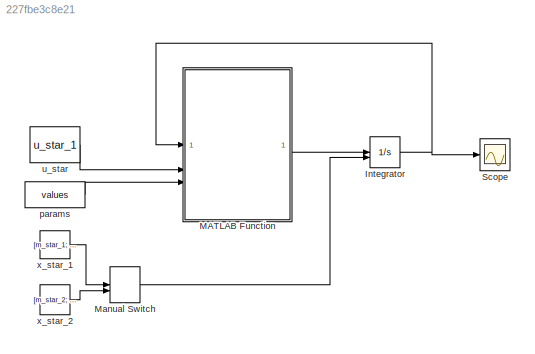
MODEL slx_227fbe3c8e21
KIND model
CONFIG AbsTol = auto
CONFIG EnableMultiTasking = off
CONFIG FixedStep = 0.001
CONFIG MaxStep = auto
CONFIG MinStep = auto
CONFIG RelTol = 1e-3
CONFIG SampleTimeConstraint = Unconstrained
CONFIG SolverName = FixedStepAuto
CONFIG StartTime = 0.0
CONFIG StopTime = 15
BLOCK [Integrator] Integrator
  InitialConditionSource = external
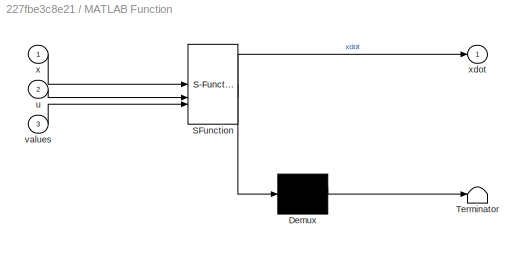
BLOCK [SubSystem] MATLAB Function
  ErrorFcn = Stateflow.Translate.translate
  PermitHierarchicalResolution = ExplicitOnly
  SFBlockType = MATLAB Function
  TreatAsAtomicUnit = on
BLOCK [Demux] MATLAB Function/ Demux 
  Outputs = 1
BLOCK [S-Function] MATLAB Function/ SFunction 
  EnableBusSupport = on
  FunctionName = sf_sfun
  PortCounts = [3 2]
  SFcnIsStateOwnerBlock = off
  SFunctionDeploymentMode = off
  Tag = Stateflow S-Function 2
BLOCK [Terminator] MATLAB Function/ Terminator 
BLOCK [Inport] MATLAB Function/u
  Port = 2
BLOCK [Inport] MATLAB Function/values
  Port = 3
BLOCK [Inport] MATLAB Function/x
BLOCK [Outport] MATLAB Function/xdot
BLOCK [ManualSwitch] Manual Switch
BLOCK [Scope] Scope
  Floating = off
  NumInputPorts = 1
  ScopeSpecificationString = Simulink.scopes.TimeScopeBlockCfg('CurrentConfiguration', extmgr.ConfigurationSet(extmgr.Configuration('Core','General UI',true),extmgr.Configuration('Core','Source UI',true),extmgr.Configuration('Sources','WiredSimulink',true),extmgr.Configuration('Visuals','Time Domain',true,'SerializedDisplays',{struct('MinYLimReal','-22.75','MaxYLimReal','224.75','YLabelReal','','MinYLimMag','0.00000','MaxYLim...<+1430ch>
BLOCK [Constant] params
  Value = values
BLOCK [Constant] u_star
  Value = u_star_1
BLOCK [Constant] x_star_1
  Value = [m_star_1; omega_star_1]
BLOCK [Constant] x_star_2
  Value = [m_star_2; omega_star_2]
NET Integrator:1 -> MATLAB Function:1, Scope:1
LINE MATLAB Function:1 -> Integrator:1
LINE Manual Switch:1 -> Integrator:2
LINE params:1 -> MATLAB Function:3
LINE u_star:1 -> MATLAB Function:2
LINE x_star_1:1 -> Manual Switch:1
LINE x_star_2:1 -> Manual Switch:2
note: NET lines group one-source signal fan-out (src -> all destinations, sorted); 1:1 wires keep LINE
CHART MATLAB Function states=1 transitions=1
  STATE_LABEL 'eML_blk_kernel()'
  STATE_LABEL 'SCRIPT:\nfunction xdot = fcn(x, u, values)\n\nq1 = values(1);\nq2 = values(2);\nq3 = values(3);\nJ = values(4);\n\nxdot = [-q1*x(2)*x(1) + u;\n         q2/J*x(1) - q3/J*x(2)];'
CHART  states=0 transitions=0
